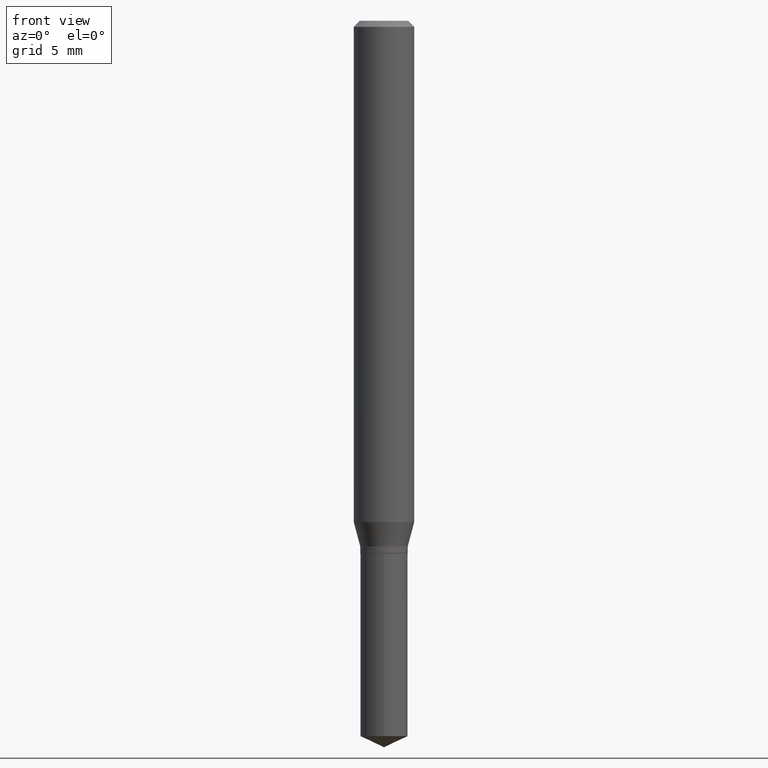
[diagram: clean part render]
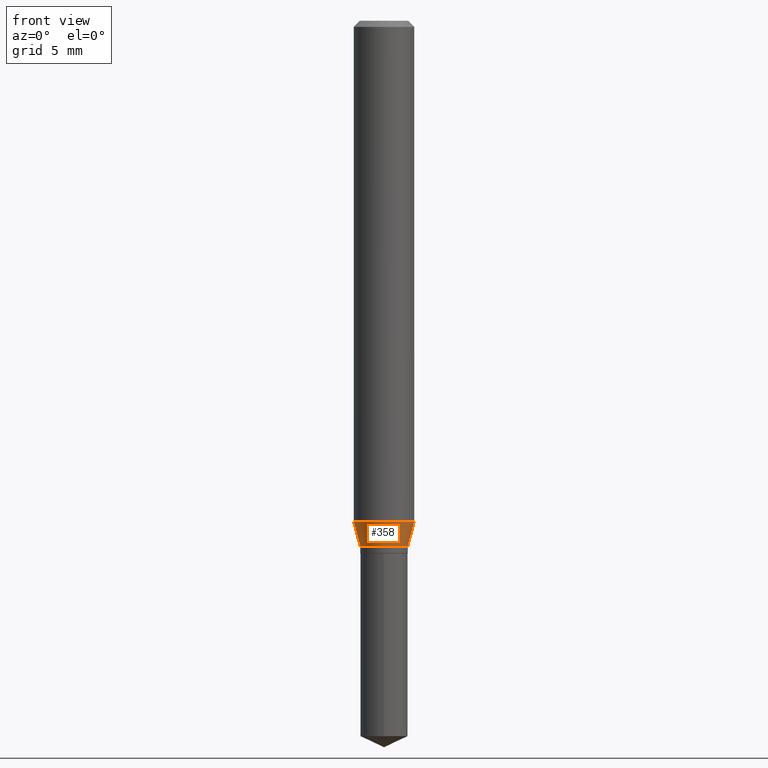
[diagram: same view with one face highlighted and labeled with its STEP entity id]
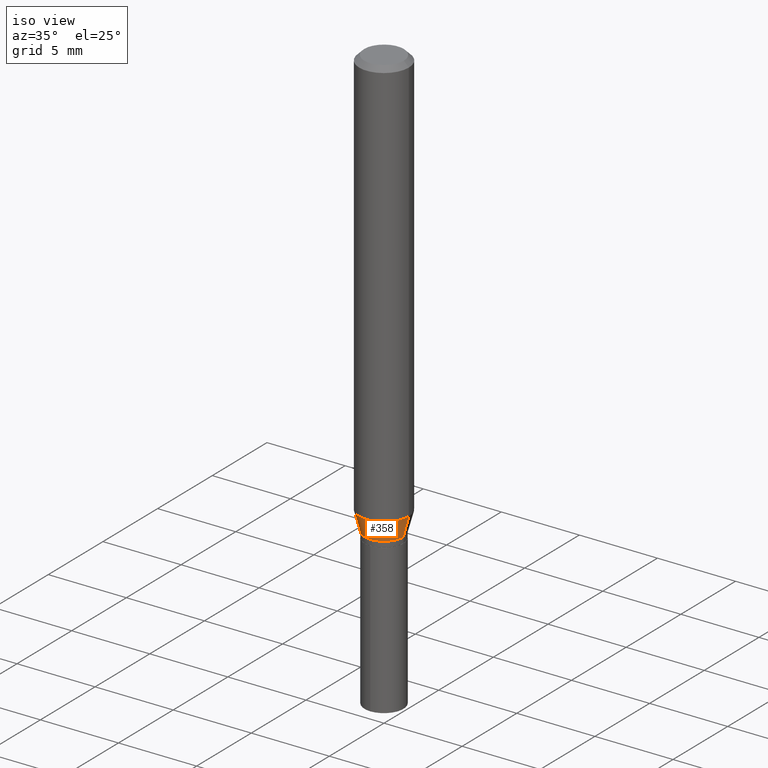
[diagram: same view with one face highlighted and labeled with its STEP entity id]
A machine part, front view. The second image highlights one B-rep face of the part: STEP entity #358.
A second angle (iso view) of the same face is appended — the face is thin or edge-on in the first view.
In plain terms, the highlighted conical surface has half-angle 15 deg.
Its self-contained STEP definition (entity closure, byte-faithful):
#7 = CIRCLE ( 'NONE', #54, 0.04900000000000000189 ) ;
#24 = VERTEX_POINT ( 'NONE', #182 ) ;
#32 = CARTESIAN_POINT ( 'NONE',  ( -0.04900000000000000189, -3.441138756524016918E-15, -1.085299999999999931 ) ) ;
#36 = DIRECTION ( 'NONE',  ( 1.000000000000000000, -6.982962677686264344E-15, 0.000000000000000000 ) ) ;
#44 = FACE_OUTER_BOUND ( 'NONE', #292, .T. ) ;
#54 = AXIS2_PLACEMENT_3D ( 'NONE', #413, #382, #200 ) ;
#65 = ORIENTED_EDGE ( 'NONE', *, *, #362, .T. ) ;
#67 = LINE ( 'NONE', #32, #336 ) ;
#81 = DIRECTION ( 'NONE',  ( -2.445468806185136597E-29, 3.491481338843145583E-15, 1.000000000000000000 ) ) ;
#88 = CARTESIAN_POINT ( 'NONE',  ( 2.530858008607123662E-29, -3.613394489418208092E-15, -1.034917314097819840 ) ) ;
#90 = LINE ( 'NONE', #288, #108 ) ;
#91 = CARTESIAN_POINT ( 'NONE',  ( 0.04900000000000000189, -4.131469868253092851E-15, -1.085299999999999931 ) ) ;
#99 = AXIS2_PLACEMENT_3D ( 'NONE', #88, #281, #36 ) ;
#108 = VECTOR ( 'NONE', #420, 39.37007874015747433 ) ;
#135 = AXIS2_PLACEMENT_3D ( 'NONE', #274, #81, #278 ) ;
#148 = CARTESIAN_POINT ( 'NONE',  ( -0.06250000000000012490, -3.169305279568144687E-15, -1.034917314097819840 ) ) ;
#174 = VERTEX_POINT ( 'NONE', #91 ) ;
#182 = CARTESIAN_POINT ( 'NONE',  ( -0.04900000000000000189, -3.465928274029803452E-15, -1.085299999999999931 ) ) ;
#200 = DIRECTION ( 'NONE',  ( 1.000000000000000000, -6.982962677686263555E-15, 0.000000000000000000 ) ) ;
#206 = ORIENTED_EDGE ( 'NONE', *, *, #250, .F. ) ;
#209 = EDGE_CURVE ( 'NONE', #24, #466, #67, .T. ) ;
#250 = EDGE_CURVE ( 'NONE', #466, #254, #306, .T. ) ;
#254 = VERTEX_POINT ( 'NONE', #384 ) ;
#274 = CARTESIAN_POINT ( 'NONE',  ( 2.654067295352728844E-29, -3.789304697046466319E-15, -1.085299999999999931 ) ) ;
#278 = DIRECTION ( 'NONE',  ( 1.000000000000000000, -6.982962677686263555E-15, 0.000000000000000000 ) ) ;
#281 = DIRECTION ( 'NONE',  ( -2.445468806185136597E-29, 3.491481338843145583E-15, 1.000000000000000000 ) ) ;
#286 = CONICAL_SURFACE ( 'NONE', #135, 0.04900000000000000189, 0.2617993877991500740 ) ;
#288 = CARTESIAN_POINT ( 'NONE',  ( 0.04900000000000000189, -4.131469868253092851E-15, -1.085299999999999931 ) ) ;
#292 = EDGE_LOOP ( 'NONE', ( #321, #65, #396, #206 ) ) ;
#306 = CIRCLE ( 'NONE', #99, 0.06250000000000012490 ) ;
#321 = ORIENTED_EDGE ( 'NONE', *, *, #209, .F. ) ;
#336 = VECTOR ( 'NONE', #435, 39.37007874015747433 ) ;
#358 = ADVANCED_FACE ( 'NONE', ( #44 ), #286, .T. ) ;
#362 = EDGE_CURVE ( 'NONE', #24, #174, #7, .T. ) ;
#382 = DIRECTION ( 'NONE',  ( -2.445468806185136597E-29, 3.491481338843145583E-15, 1.000000000000000000 ) ) ;
#384 = CARTESIAN_POINT ( 'NONE',  ( 0.06250000000000012490, -4.049829656773600550E-15, -1.034917314097819840 ) ) ;
#396 = ORIENTED_EDGE ( 'NONE', *, *, #405, .T. ) ;
#405 = EDGE_CURVE ( 'NONE', #174, #254, #90, .T. ) ;
#413 = CARTESIAN_POINT ( 'NONE',  ( 2.654067295352728844E-29, -3.789304697046466319E-15, -1.085299999999999931 ) ) ;
#420 = DIRECTION ( 'NONE',  ( 0.2588190451025213501, 1.565188264969621968E-15, 0.9659258262890682012 ) ) ;
#435 = DIRECTION ( 'NONE',  ( -0.2588190451025213501, 5.211531920934551042E-15, 0.9659258262890682012 ) ) ;
#466 = VERTEX_POINT ( 'NONE', #148 ) ;